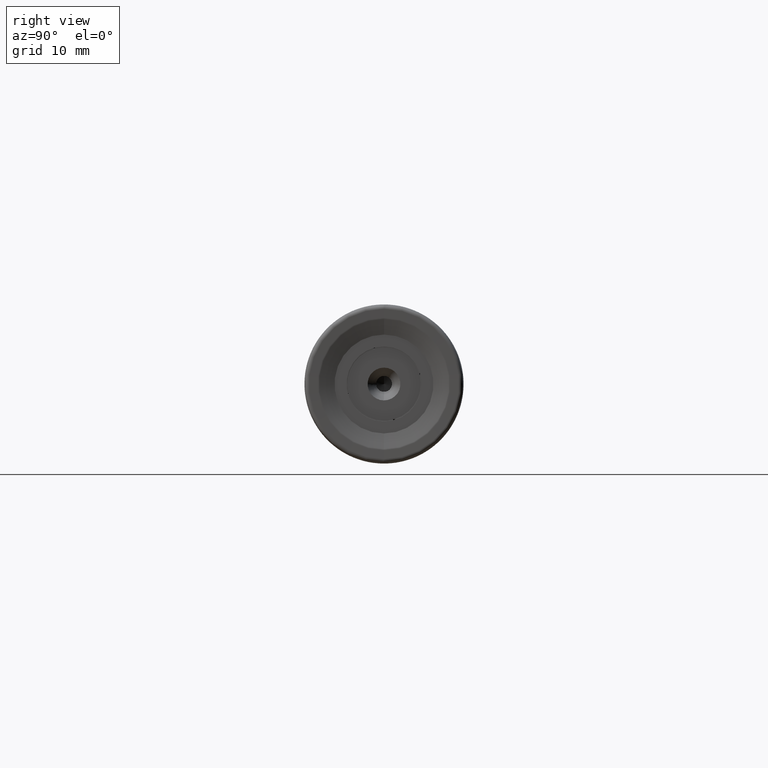
[diagram: clean part render]
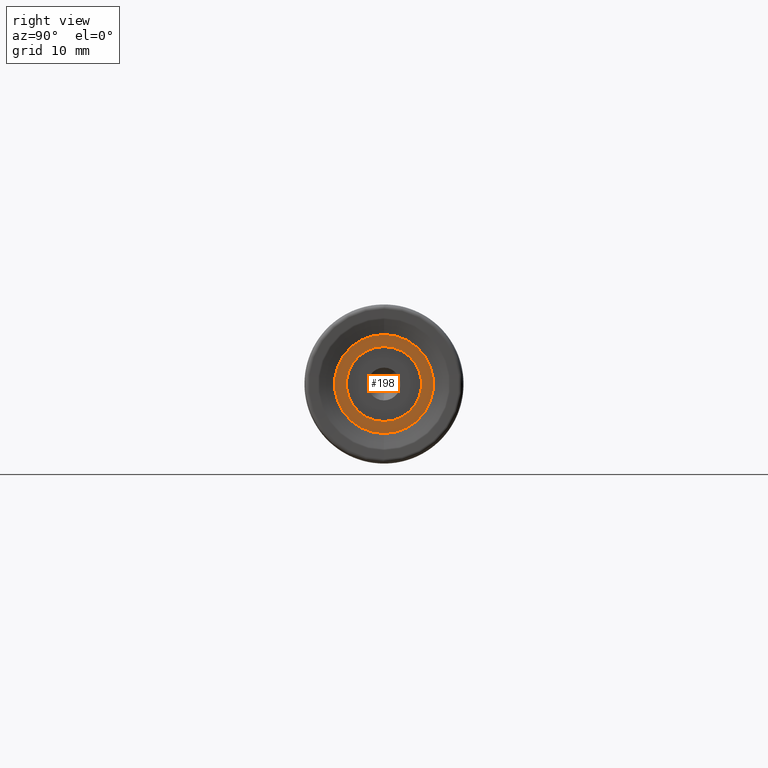
[diagram: same view with one face highlighted and labeled with its STEP entity id]
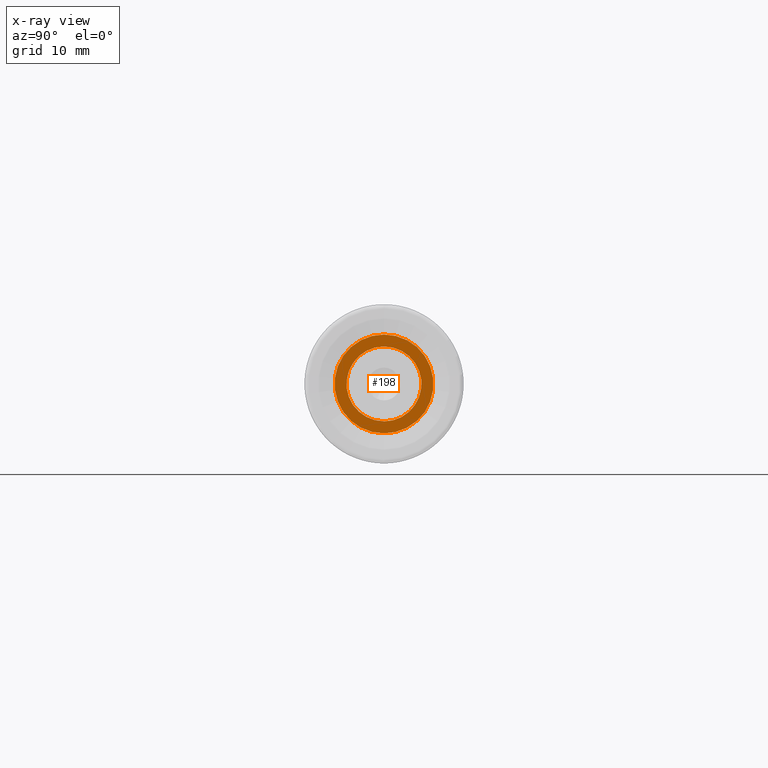
[diagram: x-ray of the same camera — body ghosted, the highlighted face saturated]
A machine part, right view. The second image highlights one B-rep face of the part: STEP entity #198.
The next image is the same camera in x-ray: the body ghosted, the highlighted face saturated — about 0% of this face is hidden behind the body in this view.
In plain terms, the highlighted planar face has unit normal (-1, 0, 0).
Its self-contained STEP definition (entity closure, byte-faithful):
#195 = EDGE_CURVE ( 'NONE', #1465, #3171, #769, .T. ) ;
#198 = ADVANCED_FACE ( 'NONE', ( #3506, #3498 ), #3502, .F. ) ;
#203 = EDGE_CURVE ( 'NONE', #3165, #2864, #1727, .T. ) ;
#685 = CARTESIAN_POINT ( 'NONE',  ( 1.951563910473908000E-015, 4.999681899688400400E-016, -3.769999999999967600 ) ) ;
#711 = AXIS2_PLACEMENT_3D ( 'NONE', #3499, #3500, #3501 ) ;
#769 = CIRCLE ( 'NONE', #711, 3.769999999999967600 ) ;
#986 = CARTESIAN_POINT ( 'NONE',  ( 1.951563910473908000E-015, 0.0000000000000000000, 0.0000000000000000000 ) ) ;
#987 = DIRECTION ( 'NONE',  ( 1.000000000000000000, -0.0000000000000000000, -0.0000000000000000000 ) ) ;
#988 = DIRECTION ( 'NONE',  ( 0.0000000000000000000, 0.0000000000000000000, -1.000000000000000000 ) ) ;
#1070 = CARTESIAN_POINT ( 'NONE',  ( 2.168404344971008900E-015, 0.0000000000000000000, 0.0000000000000000000 ) ) ;
#1071 = DIRECTION ( 'NONE',  ( 1.000000000000000000, -0.0000000000000000000, -0.0000000000000000000 ) ) ;
#1072 = DIRECTION ( 'NONE',  ( 0.0000000000000000000, 0.0000000000000000000, -1.000000000000000000 ) ) ;
#1401 = ORIENTED_EDGE ( 'NONE', *, *, #2610, .T. ) ;
#1403 = ORIENTED_EDGE ( 'NONE', *, *, #203, .T. ) ;
#1407 = ORIENTED_EDGE ( 'NONE', *, *, #2798, .F. ) ;
#1408 = ORIENTED_EDGE ( 'NONE', *, *, #195, .F. ) ;
#1465 = VERTEX_POINT ( 'NONE', #685 ) ;
#1719 = AXIS2_PLACEMENT_3D ( 'NONE', #3526, #3527, #3528 ) ;
#1723 = AXIS2_PLACEMENT_3D ( 'NONE', #1070, #1071, #1072 ) ;
#1727 = CIRCLE ( 'NONE', #1719, 4.972283386832372400 ) ;
#1759 = AXIS2_PLACEMENT_3D ( 'NONE', #3507, #3512, #3513 ) ;
#1896 = CARTESIAN_POINT ( 'NONE',  ( 2.168404344971008900E-015, 7.042784824284491900E-016, 4.972283386832372400 ) ) ;
#1903 = CARTESIAN_POINT ( 'NONE',  ( 2.168404344971008900E-015, 0.0000000000000000000, -4.972283386832372400 ) ) ;
#1907 = CARTESIAN_POINT ( 'NONE',  ( 1.951563910473908000E-015, 0.0000000000000000000, 3.769999999999967600 ) ) ;
#1947 = CIRCLE ( 'NONE', #1723, 4.972283386832372400 ) ;
#2610 = EDGE_CURVE ( 'NONE', #2864, #3165, #1947, .T. ) ;
#2798 = EDGE_CURVE ( 'NONE', #3171, #1465, #3108, .T. ) ;
#2864 = VERTEX_POINT ( 'NONE', #1896 ) ;
#3107 = AXIS2_PLACEMENT_3D ( 'NONE', #986, #987, #988 ) ;
#3108 = CIRCLE ( 'NONE', #3107, 3.769999999999967600 ) ;
#3165 = VERTEX_POINT ( 'NONE', #1903 ) ;
#3171 = VERTEX_POINT ( 'NONE', #1907 ) ;
#3245 = EDGE_LOOP ( 'NONE', ( #1403, #1401 ) ) ;
#3248 = EDGE_LOOP ( 'NONE', ( #1407, #1408 ) ) ;
#3498 = FACE_OUTER_BOUND ( 'NONE', #3245, .T. ) ;
#3499 = CARTESIAN_POINT ( 'NONE',  ( 1.951563910473908000E-015, 0.0000000000000000000, 0.0000000000000000000 ) ) ;
#3500 = DIRECTION ( 'NONE',  ( 1.000000000000000000, -0.0000000000000000000, -0.0000000000000000000 ) ) ;
#3501 = DIRECTION ( 'NONE',  ( 0.0000000000000000000, 0.0000000000000000000, -1.000000000000000000 ) ) ;
#3502 = PLANE ( 'NONE',  #1759 ) ;
#3506 = FACE_BOUND ( 'NONE', #3248, .T. ) ;
#3507 = CARTESIAN_POINT ( 'NONE',  ( 2.059984127722458400E-015, -3.769999999999967600, 0.0000000000000000000 ) ) ;
#3512 = DIRECTION ( 'NONE',  ( -1.000000000000000000, 0.0000000000000000000, 0.0000000000000000000 ) ) ;
#3513 = DIRECTION ( 'NONE',  ( 0.0000000000000000000, 0.0000000000000000000, 1.000000000000000000 ) ) ;
#3526 = CARTESIAN_POINT ( 'NONE',  ( 2.168404344971008900E-015, 0.0000000000000000000, 0.0000000000000000000 ) ) ;
#3527 = DIRECTION ( 'NONE',  ( 1.000000000000000000, -0.0000000000000000000, -0.0000000000000000000 ) ) ;
#3528 = DIRECTION ( 'NONE',  ( 0.0000000000000000000, 0.0000000000000000000, -1.000000000000000000 ) ) ;